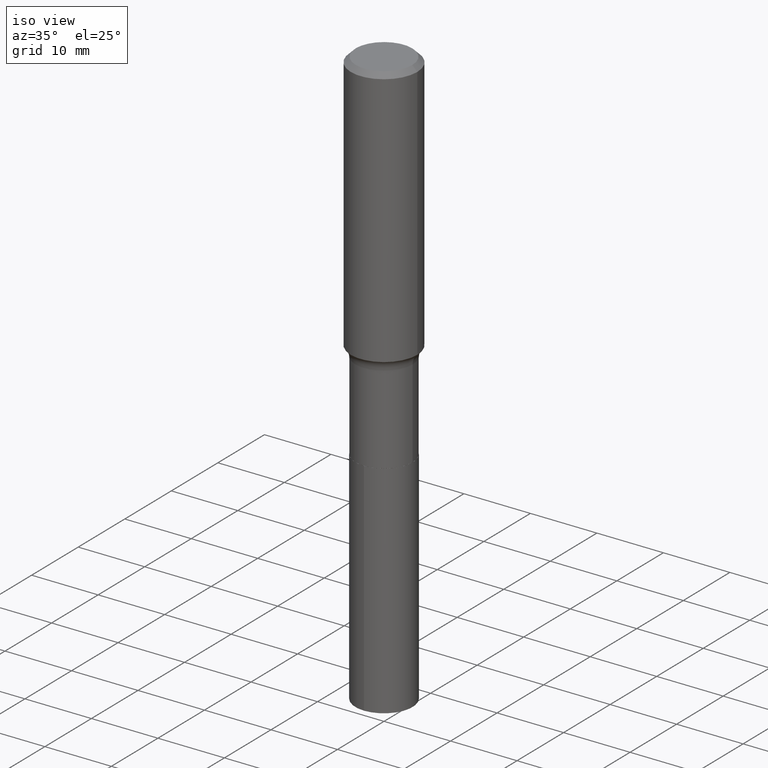
[diagram: clean part render]
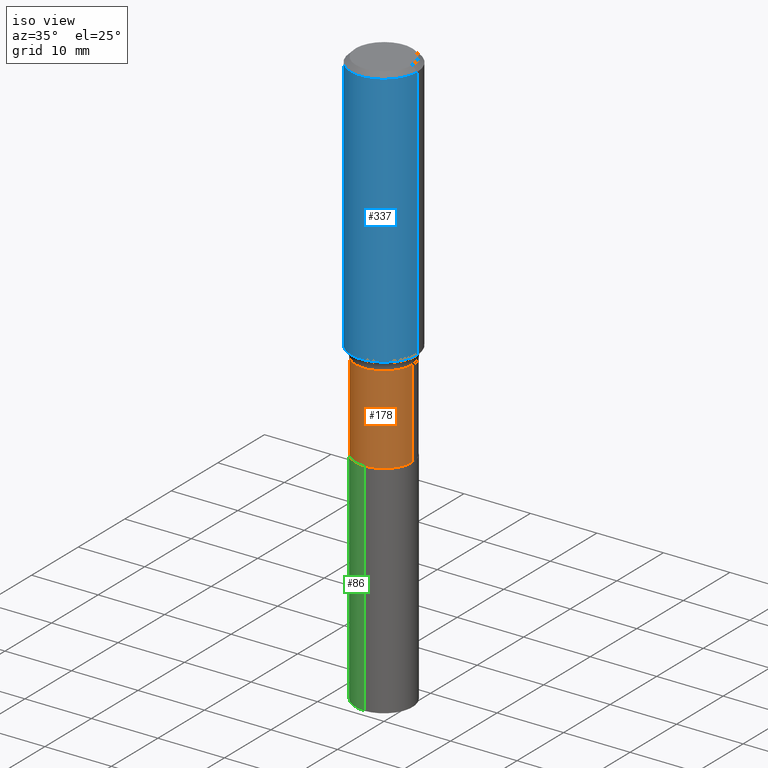
[diagram: same view with three faces highlighted in distinct colors, each labeled with its STEP entity id]
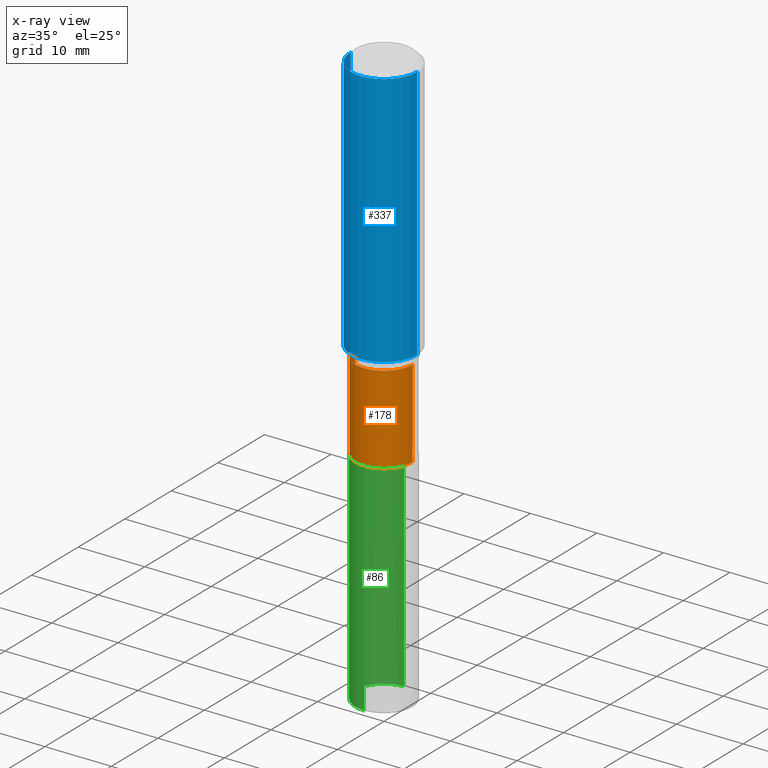
[diagram: x-ray of the same camera — body ghosted, the three highlighted faces saturated]
A machine part, iso view with three faces highlighted in distinct colors.
The next image is the same camera in x-ray (body ghosted, the three faces saturated) — at least one of them is partly hidden behind the body in this view.
Their STEP definitions:

[orange] entity #178 — the highlighted cylindrical surface (edge-blend (fillet) strip) has radius 4.3002 mm, axis along (-0, 0, 1).
#5 = CARTESIAN_POINT ( 'NONE',  ( 0.1693000000000000338, -8.603010018909505642E-15, -2.125399999999999956 ) ) ;
#6 = EDGE_CURVE ( 'NONE', #431, #165, #120, .T. ) ;
#10 = ORIENTED_EDGE ( 'NONE', *, *, #54, .F. ) ;
#20 = CARTESIAN_POINT ( 'NONE',  ( 0.000000000000000000, 0.000000000000000000, 0.000000000000000000 ) ) ;
#27 = DIRECTION ( 'NONE',  ( 1.000000000000000000, -6.982962677686263555E-15, 0.000000000000000000 ) ) ;
#31 = DIRECTION ( 'NONE',  ( -2.445468806185136877E-29, 3.491481338843145188E-15, 1.000000000000000000 ) ) ;
#32 = CARTESIAN_POINT ( 'NONE',  ( 0.1692999999999999505, -6.778012723096194024E-15, -1.602699999999999791 ) ) ;
#33 = EDGE_CURVE ( 'NONE', #431, #387, #363, .T. ) ;
#54 = EDGE_CURVE ( 'NONE', #387, #251, #87, .T. ) ;
#56 = FACE_OUTER_BOUND ( 'NONE', #233, .T. ) ;
#87 = CIRCLE ( 'NONE', #465, 0.1692999999999999505 ) ;
#103 = CARTESIAN_POINT ( 'NONE',  ( -0.1692999999999999783, 1.202948851641849460E-15, -8.327757107801554310E-30 ) ) ;
#111 = VECTOR ( 'NONE', #31, 39.37007874015748143 ) ;
#120 = CIRCLE ( 'NONE', #398, 0.1693000000000000338 ) ;
#150 = CARTESIAN_POINT ( 'NONE',  ( 3.919352855672918001E-29, -5.595797141763909209E-15, -1.602699999999999791 ) ) ;
#161 = CARTESIAN_POINT ( 'NONE',  ( 5.197599400665889285E-29, -7.420794437577220826E-15, -2.125399999999999956 ) ) ;
#165 = VERTEX_POINT ( 'NONE', #5 ) ;
#178 = ADVANCED_FACE ( 'NONE', ( #56 ), #358, .T. ) ;
#192 = EDGE_CURVE ( 'NONE', #165, #251, #296, .T. ) ;
#196 = DIRECTION ( 'NONE',  ( 1.000000000000000000, -6.982962677686266711E-15, 0.000000000000000000 ) ) ;
#228 = CARTESIAN_POINT ( 'NONE',  ( 0.1692999999999999783, -1.182215581332284815E-15, 8.255367281422518423E-30 ) ) ;
#230 = AXIS2_PLACEMENT_3D ( 'NONE', #20, #321, #468 ) ;
#233 = EDGE_LOOP ( 'NONE', ( #295, #394, #302, #10 ) ) ;
#251 = VERTEX_POINT ( 'NONE', #32 ) ;
#287 = CARTESIAN_POINT ( 'NONE',  ( -0.1693000000000000338, -5.305346938028715360E-15, -2.125399999999999956 ) ) ;
#295 = ORIENTED_EDGE ( 'NONE', *, *, #33, .F. ) ;
#296 = LINE ( 'NONE', #228, #111 ) ;
#299 = DIRECTION ( 'NONE',  ( -2.445468806185136597E-29, 3.491481338843145583E-15, 1.000000000000000000 ) ) ;
#302 = ORIENTED_EDGE ( 'NONE', *, *, #192, .T. ) ;
#321 = DIRECTION ( 'NONE',  ( -2.445468806185136597E-29, 3.491481338843145583E-15, 1.000000000000000000 ) ) ;
#330 = DIRECTION ( 'NONE',  ( -2.445468806185136877E-29, 3.491481338843145188E-15, 1.000000000000000000 ) ) ;
#358 = CYLINDRICAL_SURFACE ( 'NONE', #230, 0.1692999999999999783 ) ;
#363 = LINE ( 'NONE', #103, #450 ) ;
#387 = VERTEX_POINT ( 'NONE', #466 ) ;
#394 = ORIENTED_EDGE ( 'NONE', *, *, #6, .T. ) ;
#398 = AXIS2_PLACEMENT_3D ( 'NONE', #161, #453, #27 ) ;
#431 = VERTEX_POINT ( 'NONE', #287 ) ;
#450 = VECTOR ( 'NONE', #330, 39.37007874015748143 ) ;
#453 = DIRECTION ( 'NONE',  ( -2.445468806185136597E-29, 3.491481338843145583E-15, 1.000000000000000000 ) ) ;
#465 = AXIS2_PLACEMENT_3D ( 'NONE', #150, #299, #196 ) ;
#466 = CARTESIAN_POINT ( 'NONE',  ( -0.1692999999999999505, -5.305346938028715360E-15, -1.602699999999999791 ) ) ;
#468 = DIRECTION ( 'NONE',  ( 1.000000000000000000, -6.982962677686266711E-15, 4.876176775795935793E-29 ) ) ;

[blue] entity #337 — the highlighted cylindrical surface (partial cylindrical patch) has radius 5 mm, axis along (-0, 0, 1).
#12 = CARTESIAN_POINT ( 'NONE',  ( 0.1968500000000001915, -6.762692826187845187E-15, -1.543212207134572189 ) ) ;
#21 = VERTEX_POINT ( 'NONE', #141 ) ;
#25 = DIRECTION ( 'NONE',  ( -2.445468806185136877E-29, 3.491481338843145188E-15, 1.000000000000000000 ) ) ;
#84 = DIRECTION ( 'NONE',  ( 1.000000000000000000, -6.982962677686266711E-15, 0.000000000000000000 ) ) ;
#118 = VERTEX_POINT ( 'NONE', #12 ) ;
#122 = DIRECTION ( 'NONE',  ( -2.445468806185136597E-29, 3.491481338843145583E-15, 1.000000000000000000 ) ) ;
#141 = CARTESIAN_POINT ( 'NONE',  ( 0.1968500000000000527, -1.477690918335233688E-15, -0.02952750000000022371 ) ) ;
#145 = DIRECTION ( 'NONE',  ( -2.445468806185136597E-29, 3.491481338843145583E-15, 1.000000000000000000 ) ) ;
#156 = EDGE_CURVE ( 'NONE', #194, #488, #286, .T. ) ;
#164 = AXIS2_PLACEMENT_3D ( 'NONE', #480, #145, #326 ) ;
#194 = VERTEX_POINT ( 'NONE', #406 ) ;
#201 = CIRCLE ( 'NONE', #250, 0.1968500000000000527 ) ;
#206 = DIRECTION ( 'NONE',  ( -2.445468806185136877E-29, 3.491481338843145188E-15, 1.000000000000000000 ) ) ;
#221 = LINE ( 'NONE', #324, #420 ) ;
#232 = ORIENTED_EDGE ( 'NONE', *, *, #352, .T. ) ;
#248 = ORIENTED_EDGE ( 'NONE', *, *, #491, .T. ) ;
#250 = AXIS2_PLACEMENT_3D ( 'NONE', #322, #469, #84 ) ;
#264 = EDGE_LOOP ( 'NONE', ( #359, #232, #248, #473 ) ) ;
#268 = EDGE_CURVE ( 'NONE', #488, #21, #201, .T. ) ;
#286 = LINE ( 'NONE', #396, #477 ) ;
#293 = DIRECTION ( 'NONE',  ( 1.000000000000000000, -6.982962677686266711E-15, 4.876176775795935793E-29 ) ) ;
#304 = CYLINDRICAL_SURFACE ( 'NONE', #333, 0.1968500000000001082 ) ;
#309 = CARTESIAN_POINT ( 'NONE',  ( 0.000000000000000000, 0.000000000000000000, 0.000000000000000000 ) ) ;
#322 = CARTESIAN_POINT ( 'NONE',  ( 7.220858017463217368E-31, -1.030947152326917719E-16, -0.02952750000000022371 ) ) ;
#324 = CARTESIAN_POINT ( 'NONE',  ( 0.1968500000000001082, -1.374596203102542397E-15, 9.598753983154305062E-30 ) ) ;
#326 = DIRECTION ( 'NONE',  ( 1.000000000000000000, -6.982962677686265922E-15, 0.000000000000000000 ) ) ;
#333 = AXIS2_PLACEMENT_3D ( 'NONE', #309, #122, #293 ) ;
#337 = ADVANCED_FACE ( 'NONE', ( #447 ), #304, .T. ) ;
#352 = EDGE_CURVE ( 'NONE', #194, #118, #371, .T. ) ;
#359 = ORIENTED_EDGE ( 'NONE', *, *, #156, .F. ) ;
#371 = CIRCLE ( 'NONE', #164, 0.1968500000000002192 ) ;
#396 = CARTESIAN_POINT ( 'NONE',  ( -0.1968500000000001082, 1.398703375343757985E-15, -9.682923725166787881E-30 ) ) ;
#406 = CARTESIAN_POINT ( 'NONE',  ( -0.1968500000000001915, -3.989393247741543424E-15, -1.543212207134572189 ) ) ;
#420 = VECTOR ( 'NONE', #25, 39.37007874015748143 ) ;
#424 = CARTESIAN_POINT ( 'NONE',  ( -0.1968500000000000527, -1.346892293815238661E-15, -0.02952750000000022371 ) ) ;
#447 = FACE_OUTER_BOUND ( 'NONE', #264, .T. ) ;
#469 = DIRECTION ( 'NONE',  ( -2.445468806185136597E-29, 3.491481338843145583E-15, 1.000000000000000000 ) ) ;
#473 = ORIENTED_EDGE ( 'NONE', *, *, #268, .F. ) ;
#477 = VECTOR ( 'NONE', #206, 39.37007874015748143 ) ;
#480 = CARTESIAN_POINT ( 'NONE',  ( 3.773877313871712479E-29, -5.388096623085302001E-15, -1.543212207134572189 ) ) ;
#488 = VERTEX_POINT ( 'NONE', #424 ) ;
#491 = EDGE_CURVE ( 'NONE', #118, #21, #221, .T. ) ;

[green] entity #86 — the highlighted cylindrical surface (edge-blend (fillet) strip) has radius 4.3002 mm, axis along (-0, 0, 1).
#4 = CARTESIAN_POINT ( 'NONE',  ( 1.202948851641933671E-15, 0.1692999999999926231, -2.125900000000000567 ) ) ;
#30 = VECTOR ( 'NONE', #157, 39.37007874015748143 ) ;
#49 = CARTESIAN_POINT ( 'NONE',  ( 5.198822135068982087E-29, -7.422540178246643119E-15, -2.125899999999999679 ) ) ;
#66 = DIRECTION ( 'NONE',  ( -6.982962677686265922E-15, -1.000000000000000000, 3.227227399485248397E-15 ) ) ;
#82 = VERTEX_POINT ( 'NONE', #114 ) ;
#86 = ADVANCED_FACE ( 'NONE', ( #405 ), #475, .T. ) ;
#93 = DIRECTION ( 'NONE',  ( -6.982962677686265922E-15, -1.000000000000000000, 3.227227399485248397E-15 ) ) ;
#96 = DIRECTION ( 'NONE',  ( -2.445359563184350382E-29, 3.491637781037997457E-15, 1.000000000000000000 ) ) ;
#102 = CIRCLE ( 'NONE', #437, 0.1693000000000000338 ) ;
#114 = CARTESIAN_POINT ( 'NONE',  ( 1.202948851641933277E-15, 0.1692999999999879879, -3.435498359966108861 ) ) ;
#124 = ORIENTED_EDGE ( 'NONE', *, *, #410, .F. ) ;
#132 = VECTOR ( 'NONE', #96, 39.37007874015748143 ) ;
#157 = DIRECTION ( 'NONE',  ( -2.445359563184350382E-29, 3.491637781037997457E-15, 1.000000000000000000 ) ) ;
#172 = VERTEX_POINT ( 'NONE', #220 ) ;
#203 = CARTESIAN_POINT ( 'NONE',  ( 1.202948851641901525E-15, 0.1692999999999926231, -2.125900000000000567 ) ) ;
#209 = DIRECTION ( 'NONE',  ( -2.445359563184350382E-29, 3.491637781037997062E-15, 1.000000000000000000 ) ) ;
#219 = DIRECTION ( 'NONE',  ( -6.982962677686265922E-15, -1.000000000000000000, 3.227227399485248397E-15 ) ) ;
#220 = CARTESIAN_POINT ( 'NONE',  ( -1.182215581332200604E-15, -0.1693000000000119687, -3.435498359966107529 ) ) ;
#225 = AXIS2_PLACEMENT_3D ( 'NONE', #315, #462, #219 ) ;
#240 = LINE ( 'NONE', #203, #30 ) ;
#249 = ORIENTED_EDGE ( 'NONE', *, *, #278, .F. ) ;
#256 = ORIENTED_EDGE ( 'NONE', *, *, #380, .T. ) ;
#278 = EDGE_CURVE ( 'NONE', #82, #441, #240, .T. ) ;
#285 = LINE ( 'NONE', #428, #132 ) ;
#315 = CARTESIAN_POINT ( 'NONE',  ( 8.401261008542646974E-29, -1.199518328988970502E-14, -3.435498359966108417 ) ) ;
#318 = DIRECTION ( 'NONE',  ( -2.445359563184350382E-29, 3.491637781037997062E-15, 1.000000000000000000 ) ) ;
#332 = CARTESIAN_POINT ( 'NONE',  ( 5.198822135068982087E-29, -7.422540178246643119E-15, -2.125899999999999679 ) ) ;
#335 = EDGE_LOOP ( 'NONE', ( #249, #411, #256, #124 ) ) ;
#343 = VERTEX_POINT ( 'NONE', #401 ) ;
#380 = EDGE_CURVE ( 'NONE', #172, #343, #285, .T. ) ;
#381 = AXIS2_PLACEMENT_3D ( 'NONE', #332, #318, #66 ) ;
#401 = CARTESIAN_POINT ( 'NONE',  ( -1.182215581332233145E-15, -0.1693000000000074445, -2.125899999999999235 ) ) ;
#405 = FACE_OUTER_BOUND ( 'NONE', #335, .T. ) ;
#410 = EDGE_CURVE ( 'NONE', #441, #343, #102, .T. ) ;
#411 = ORIENTED_EDGE ( 'NONE', *, *, #414, .T. ) ;
#414 = EDGE_CURVE ( 'NONE', #82, #172, #478, .T. ) ;
#428 = CARTESIAN_POINT ( 'NONE',  ( -1.182215581332233145E-15, -0.1693000000000074445, -2.125899999999999235 ) ) ;
#437 = AXIS2_PLACEMENT_3D ( 'NONE', #49, #209, #93 ) ;
#441 = VERTEX_POINT ( 'NONE', #4 ) ;
#462 = DIRECTION ( 'NONE',  ( -2.445359563184350382E-29, 3.491637781037997062E-15, 1.000000000000000000 ) ) ;
#475 = CYLINDRICAL_SURFACE ( 'NONE', #381, 0.1693000000000000338 ) ;
#478 = CIRCLE ( 'NONE', #225, 0.1693000000000000338 ) ;